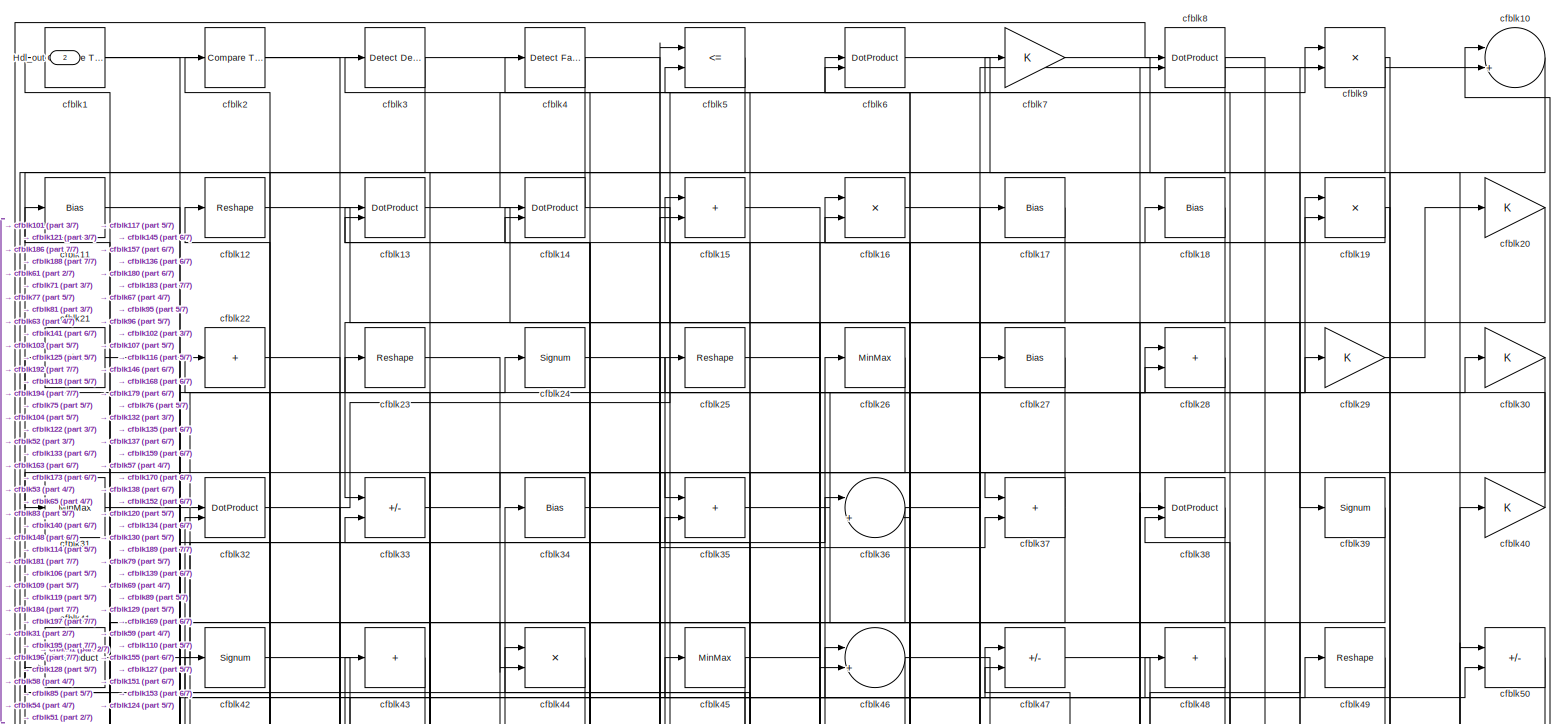
[diagram: root canvas - part 1/7, full width, top band]
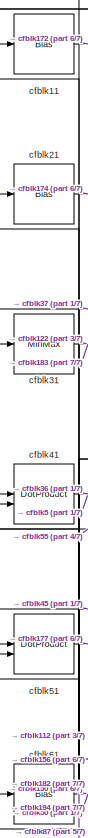
[diagram: root canvas - part 2/7, top left region]
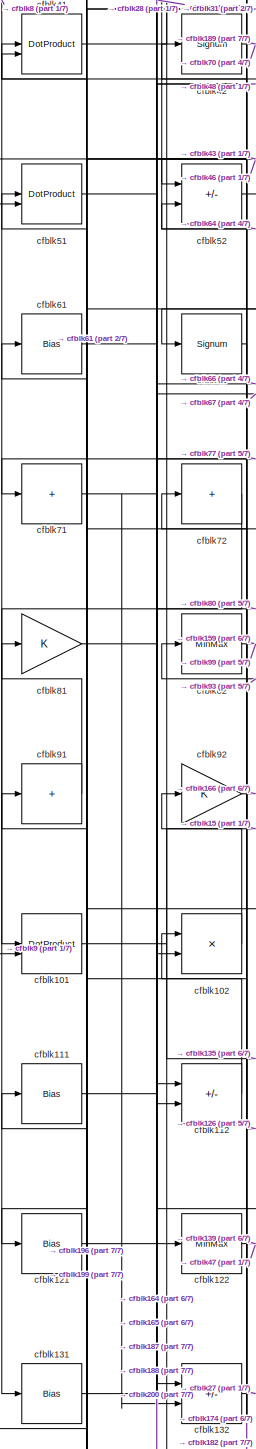
[diagram: root canvas - part 3/7, middle left region]
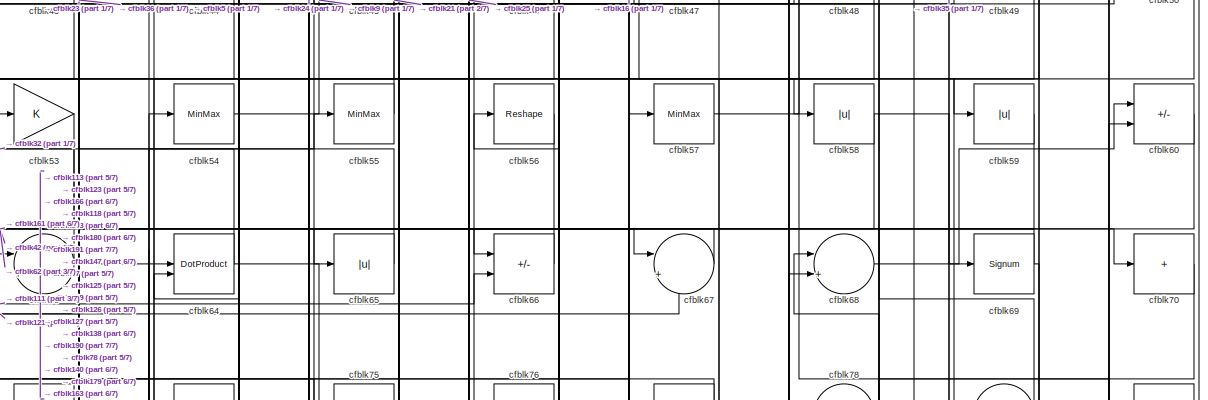
[diagram: root canvas - part 4/7, full width, top band]
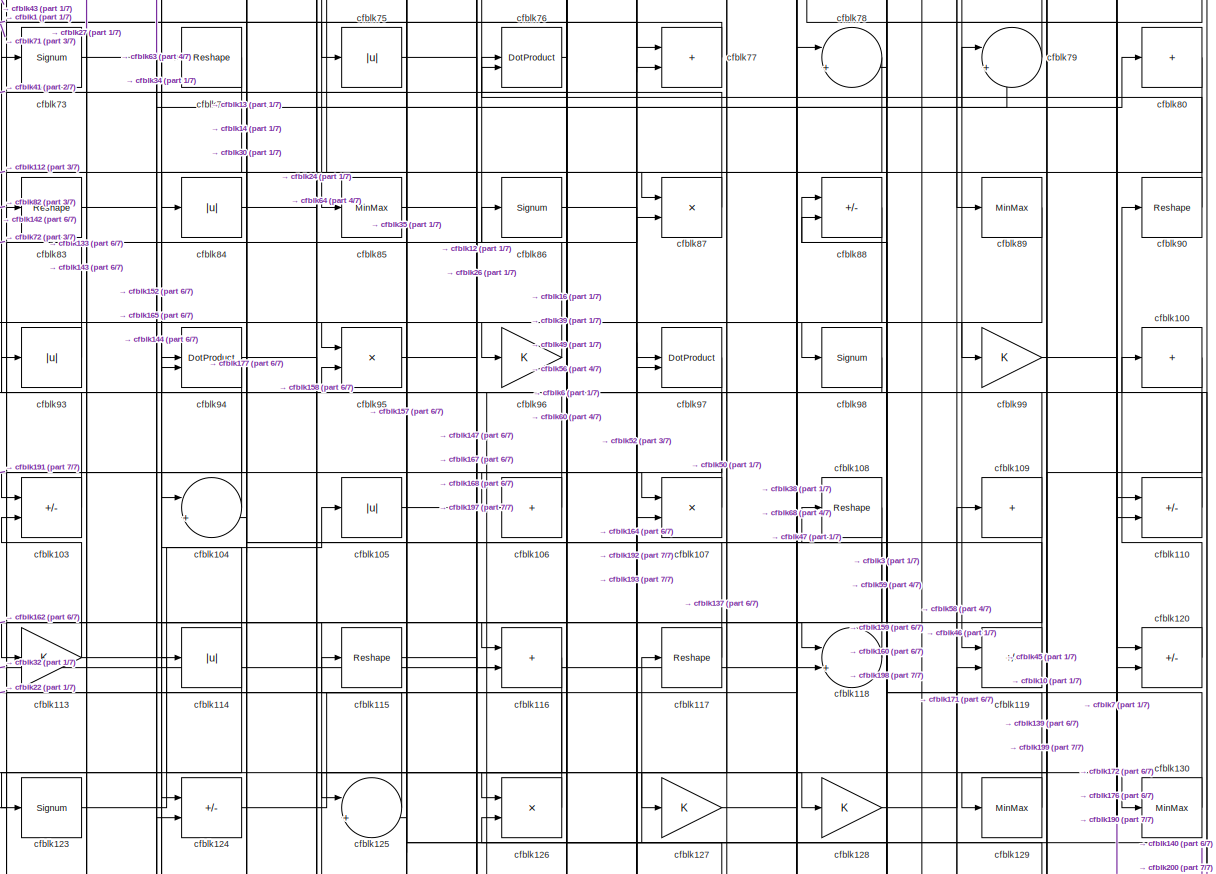
[diagram: root canvas - part 5/7, full width, middle band]
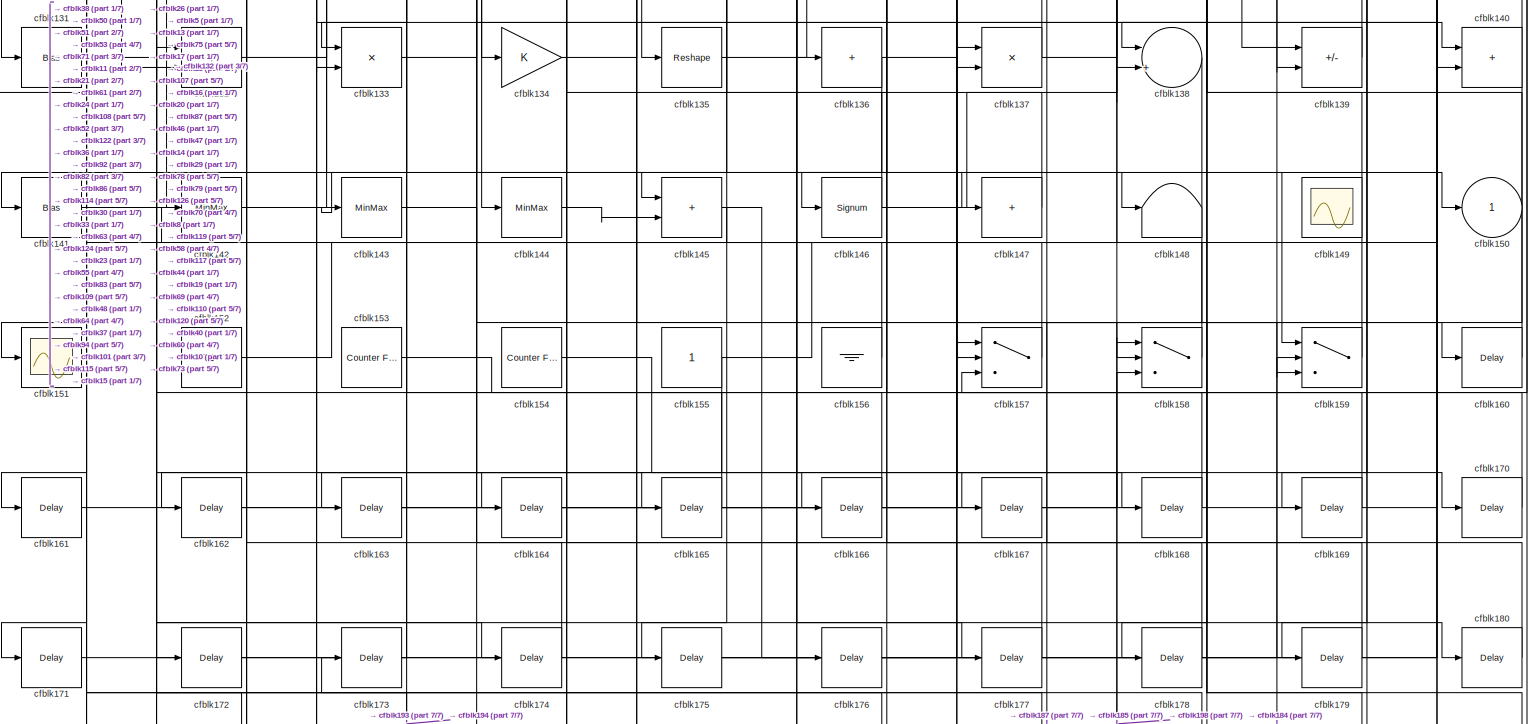
[diagram: root canvas - part 6/7, full width, bottom band]
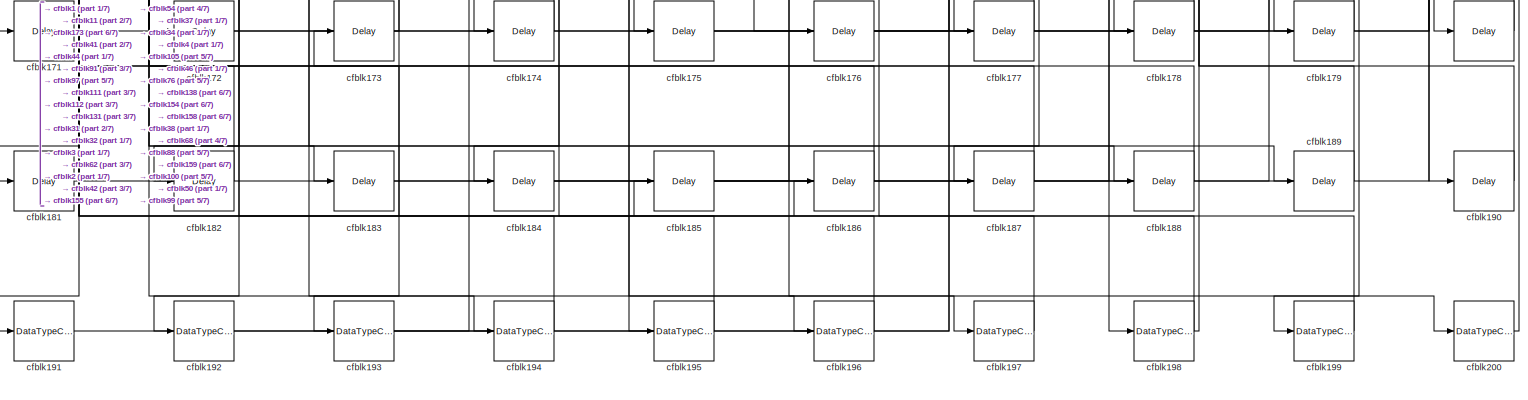
[diagram: root canvas - part 7/7, full width, bottom band]
MODEL slx_822cb5419ef6
KIND model
CONFIG AbsTol = auto
CONFIG EnableMultiTasking = off
CONFIG FixedStep = auto
CONFIG MaxStep = auto
CONFIG MinStep = auto
CONFIG RelTol = 1e-3
CONFIG SampleTimeConstraint = Unconstrained
CONFIG SolverName = VariableStepAuto
CONFIG StartTime = 0.0
CONFIG StopTime = 10.0
BLOCK [Outport] Hdl_out
  OutDataTypeStr = uint8
  Port = 2
BLOCK [Reference] cfblk1  REF=hdlsllib/Logic and Bit
Operations/Compare
To Constant
  SourceBlock = hdlsllib/Logic and Bit\nOperations/Compare\nTo Constant
  SourceType = Compare To Constant
BLOCK [Sum] cfblk10
  Inputs = |++
  OutDataTypeStr = uint8
BLOCK [Sum] cfblk100
  IconShape = rectangular
  Inputs = +
  OutDataTypeStr = uint8
BLOCK [DotProduct] cfblk101
  OutDataTypeStr = uint8
BLOCK [Product] cfblk102
  Inputs = */
  OutDataTypeStr = uint8
  RndMeth = Zero
  SaturateOnIntegerOverflow = on
BLOCK [Sum] cfblk103
  IconShape = rectangular
  Inputs = +-
  OutDataTypeStr = uint8
BLOCK [Sum] cfblk104
  Inputs = |++
  OutDataTypeStr = uint8
BLOCK [Abs] cfblk105
  OutDataTypeStr = uint8
  SaturateOnIntegerOverflow = off
BLOCK [Sum] cfblk106
  IconShape = rectangular
  Inputs = +
  OutDataTypeStr = uint8
BLOCK [Product] cfblk107
  Inputs = */
  OutDataTypeStr = uint8
  RndMeth = Zero
  SaturateOnIntegerOverflow = on
BLOCK [Reshape] cfblk108
BLOCK [Sum] cfblk109
  IconShape = rectangular
  Inputs = +
  OutDataTypeStr = uint8
BLOCK [Bias] cfblk11
  Bias = 0.0
  SaturateOnIntegerOverflow = off
BLOCK [Sum] cfblk110
  IconShape = rectangular
  Inputs = +-
  OutDataTypeStr = uint8
BLOCK [Bias] cfblk111
  Bias = 0.0
  SaturateOnIntegerOverflow = off
BLOCK [Sum] cfblk112
  IconShape = rectangular
  Inputs = +-
  OutDataTypeStr = uint8
BLOCK [Gain] cfblk113
  OutDataTypeStr = uint8
BLOCK [Abs] cfblk114
  OutDataTypeStr = uint8
  SaturateOnIntegerOverflow = off
BLOCK [Reshape] cfblk115
BLOCK [Sum] cfblk116
  IconShape = rectangular
  OutDataTypeStr = uint8
BLOCK [Reshape] cfblk117
BLOCK [Sum] cfblk118
  Inputs = |++
  OutDataTypeStr = uint8
BLOCK [Sum] cfblk119
  IconShape = rectangular
  Inputs = +-
  OutDataTypeStr = uint8
BLOCK [Reshape] cfblk12
BLOCK [Sum] cfblk120
  IconShape = rectangular
  Inputs = +-
  OutDataTypeStr = uint8
BLOCK [Bias] cfblk121
  Bias = 0.0
  SaturateOnIntegerOverflow = off
BLOCK [MinMax] cfblk122
  OutDataTypeStr = uint8
BLOCK [Signum] cfblk123
BLOCK [Sum] cfblk124
  IconShape = rectangular
  Inputs = +-
  OutDataTypeStr = uint8
BLOCK [Sum] cfblk125
  Inputs = |++
  OutDataTypeStr = uint8
BLOCK [Product] cfblk126
  Inputs = */
  OutDataTypeStr = uint8
  RndMeth = Zero
  SaturateOnIntegerOverflow = on
BLOCK [Gain] cfblk127
  OutDataTypeStr = uint8
BLOCK [Gain] cfblk128
  OutDataTypeStr = uint8
BLOCK [MinMax] cfblk129
  OutDataTypeStr = uint8
BLOCK [DotProduct] cfblk13
  OutDataTypeStr = uint8
BLOCK [MinMax] cfblk130
  OutDataTypeStr = uint8
BLOCK [Bias] cfblk131
  Bias = 0.0
  SaturateOnIntegerOverflow = off
BLOCK [Sum] cfblk132
  IconShape = rectangular
  Inputs = +-
  OutDataTypeStr = uint8
BLOCK [Product] cfblk133
  Inputs = */
  OutDataTypeStr = uint8
  RndMeth = Zero
  SaturateOnIntegerOverflow = on
BLOCK [Gain] cfblk134
  OutDataTypeStr = uint8
BLOCK [Reshape] cfblk135
BLOCK [Sum] cfblk136
  IconShape = rectangular
  Inputs = +
  OutDataTypeStr = uint8
BLOCK [Product] cfblk137
  Inputs = */
  OutDataTypeStr = uint8
  RndMeth = Zero
  SaturateOnIntegerOverflow = on
BLOCK [Sum] cfblk138
  Inputs = |++
  OutDataTypeStr = uint8
BLOCK [Sum] cfblk139
  IconShape = rectangular
  Inputs = +-
  OutDataTypeStr = uint8
BLOCK [DotProduct] cfblk14
  OutDataTypeStr = uint8
BLOCK [Sum] cfblk140
  IconShape = rectangular
  OutDataTypeStr = uint8
BLOCK [Bias] cfblk141
  Bias = 0.0
  SaturateOnIntegerOverflow = off
BLOCK [MinMax] cfblk142
  OutDataTypeStr = uint8
BLOCK [MinMax] cfblk143
  OutDataTypeStr = uint8
BLOCK [MinMax] cfblk144
  OutDataTypeStr = uint8
BLOCK [Sum] cfblk145
  IconShape = rectangular
  OutDataTypeStr = uint8
BLOCK [Signum] cfblk146
BLOCK [Sum] cfblk147
  IconShape = rectangular
  Inputs = +
  OutDataTypeStr = uint8
BLOCK [Terminator] cfblk148
BLOCK [Scope] cfblk149
  Floating = on
  NumInputPorts = 1
  ScopeSpecificationString = Simulink.scopes.TimeScopeBlockCfg('CurrentConfiguration', extmgr.ConfigurationSet(extmgr.Configuration('Core','General UI',true,'FigureColor',[0.156862745098039 0.156862745098039 0.156862745098039]),extmgr.Configuration('Core','Source UI',true),extmgr.Configuration('Sources','WiredSimulink',true,'DataLoggingVariableName','ScopeData1','DataLoggingSaveFormat','StructureWithTime','DataLoggingLimitDat...<+2713ch>
BLOCK [Sum] cfblk15
  IconShape = rectangular
  OutDataTypeStr = uint8
BLOCK [Outport] cfblk150
  OutDataTypeStr = uint8
  VectorParamsAs1DForOutWhenUnconnected = off
BLOCK [Scope] cfblk151
  Floating = off
  NumInputPorts = 1
  ScopeSpecificationString = Simulink.scopes.TimeScopeBlockCfg('CurrentConfiguration', extmgr.ConfigurationSet(extmgr.Configuration('Core','General UI',true),extmgr.Configuration('Core','Source UI',true),extmgr.Configuration('Sources','WiredSimulink',true,'DataLoggingVariableName','ScopeData2','DataLoggingSaveFormat','Array','DataLoggingLimitDataPoints',true,'DataLoggingDecimation','1'),extmgr.Configuration('Visuals','Time Do...<+868ch>
BLOCK [Ground] cfblk152
BLOCK [Reference] cfblk153  REF=hdlsllib/Sources/Counter
Free-Running
  SourceBlock = hdlsllib/Sources/Counter\nFree-Running
  SourceType = Counter Free-Running
BLOCK [Reference] cfblk154  REF=hdlsllib/Sources/Counter
Free-Running
  SourceBlock = hdlsllib/Sources/Counter\nFree-Running
  SourceType = Counter Free-Running
BLOCK [Constant] cfblk155
  OutDataTypeStr = uint8
  SampleTime = -1
BLOCK [Ground] cfblk156
BLOCK [Switch] cfblk157
  InputSameDT = off
  OutDataTypeStr = uint8
  SaturateOnIntegerOverflow = off
BLOCK [Switch] cfblk158
  InputSameDT = off
  OutDataTypeStr = uint8
  SaturateOnIntegerOverflow = off
BLOCK [Switch] cfblk159
  InputSameDT = off
  OutDataTypeStr = uint8
  SaturateOnIntegerOverflow = off
BLOCK [Product] cfblk16
  Inputs = */
  OutDataTypeStr = uint8
  RndMeth = Zero
  SaturateOnIntegerOverflow = on
BLOCK [Delay] cfblk160
  InputPortMap = u0
  SampleTime = 1
BLOCK [Delay] cfblk161
  InputPortMap = u0
  SampleTime = 1
BLOCK [Delay] cfblk162
  InputPortMap = u0
  SampleTime = 1
BLOCK [Delay] cfblk163
  InputPortMap = u0
  SampleTime = 1
BLOCK [Delay] cfblk164
  InputPortMap = u0
  SampleTime = 1
BLOCK [Delay] cfblk165
  InputPortMap = u0
  SampleTime = 1
BLOCK [Delay] cfblk166
  InputPortMap = u0
  SampleTime = 1
BLOCK [Delay] cfblk167
  InputPortMap = u0
  SampleTime = 1
BLOCK [Delay] cfblk168
  InputPortMap = u0
  SampleTime = 1
BLOCK [Delay] cfblk169
  InputPortMap = u0
  SampleTime = 1
BLOCK [Bias] cfblk17
  Bias = 0.0
  SaturateOnIntegerOverflow = off
BLOCK [Delay] cfblk170
  InputPortMap = u0
  SampleTime = 1
BLOCK [Delay] cfblk171
  InputPortMap = u0
  SampleTime = 1
BLOCK [Delay] cfblk172
  InputPortMap = u0
  SampleTime = 1
BLOCK [Delay] cfblk173
  InputPortMap = u0
  SampleTime = 1
BLOCK [Delay] cfblk174
  InputPortMap = u0
  SampleTime = 1
BLOCK [Delay] cfblk175
  InputPortMap = u0
  SampleTime = 1
BLOCK [Delay] cfblk176
  InputPortMap = u0
  SampleTime = 1
BLOCK [Delay] cfblk177
  InputPortMap = u0
  SampleTime = 1
BLOCK [Delay] cfblk178
  InputPortMap = u0
  SampleTime = 1
BLOCK [Delay] cfblk179
  InputPortMap = u0
  SampleTime = 1
BLOCK [Bias] cfblk18
  Bias = 0.0
  SaturateOnIntegerOverflow = off
BLOCK [Delay] cfblk180
  InputPortMap = u0
  SampleTime = 1
BLOCK [Delay] cfblk181
  InputPortMap = u0
  SampleTime = 1
BLOCK [Delay] cfblk182
  InputPortMap = u0
  SampleTime = 1
BLOCK [Delay] cfblk183
  InputPortMap = u0
  SampleTime = 1
BLOCK [Delay] cfblk184
  InputPortMap = u0
  SampleTime = 1
BLOCK [Delay] cfblk185
  InputPortMap = u0
  SampleTime = 1
BLOCK [Delay] cfblk186
  InputPortMap = u0
  SampleTime = 1
BLOCK [Delay] cfblk187
  InputPortMap = u0
  SampleTime = 1
BLOCK [Delay] cfblk188
  InputPortMap = u0
  SampleTime = 1
BLOCK [Delay] cfblk189
  InputPortMap = u0
  SampleTime = 1
BLOCK [Product] cfblk19
  Inputs = */
  OutDataTypeStr = uint8
  RndMeth = Zero
  SaturateOnIntegerOverflow = on
BLOCK [Delay] cfblk190
  InputPortMap = u0
  SampleTime = 1
BLOCK [DataTypeConversion] cfblk191
  OutDataTypeStr = uint8
  RndMeth = Floor
  SaturateOnIntegerOverflow = off
BLOCK [DataTypeConversion] cfblk192
  OutDataTypeStr = uint8
  RndMeth = Floor
  SaturateOnIntegerOverflow = off
BLOCK [DataTypeConversion] cfblk193
  OutDataTypeStr = uint8
  RndMeth = Floor
  SaturateOnIntegerOverflow = off
BLOCK [DataTypeConversion] cfblk194
  OutDataTypeStr = uint8
  RndMeth = Floor
  SaturateOnIntegerOverflow = off
BLOCK [DataTypeConversion] cfblk195
  OutDataTypeStr = uint8
  RndMeth = Floor
  SaturateOnIntegerOverflow = off
BLOCK [DataTypeConversion] cfblk196
  OutDataTypeStr = uint8
  RndMeth = Floor
  SaturateOnIntegerOverflow = off
BLOCK [DataTypeConversion] cfblk197
  OutDataTypeStr = uint8
  RndMeth = Floor
  SaturateOnIntegerOverflow = off
BLOCK [DataTypeConversion] cfblk198
  OutDataTypeStr = uint8
  RndMeth = Floor
  SaturateOnIntegerOverflow = off
BLOCK [DataTypeConversion] cfblk199
  OutDataTypeStr = uint8
  RndMeth = Floor
  SaturateOnIntegerOverflow = off
BLOCK [Reference] cfblk2  REF=hdlsllib/Logic and Bit
Operations/Compare
To Constant
  SourceBlock = hdlsllib/Logic and Bit\nOperations/Compare\nTo Constant
  SourceType = Compare To Constant
BLOCK [Gain] cfblk20
  OutDataTypeStr = uint8
BLOCK [DataTypeConversion] cfblk200
  OutDataTypeStr = uint8
  RndMeth = Floor
  SaturateOnIntegerOverflow = off
BLOCK [Bias] cfblk21
  Bias = 0.0
  SaturateOnIntegerOverflow = off
BLOCK [Sum] cfblk22
  IconShape = rectangular
  Inputs = +
  OutDataTypeStr = uint8
BLOCK [Reshape] cfblk23
BLOCK [Signum] cfblk24
BLOCK [Reshape] cfblk25
BLOCK [MinMax] cfblk26
  OutDataTypeStr = uint8
BLOCK [Bias] cfblk27
  Bias = 0.0
  SaturateOnIntegerOverflow = off
BLOCK [Sum] cfblk28
  IconShape = rectangular
  OutDataTypeStr = uint8
BLOCK [Gain] cfblk29
  OutDataTypeStr = uint8
BLOCK [Reference] cfblk3  REF=simulink/Logic and Bit
Operations/Detect
Decrease
  LibrarySourceBlock = hdlsllib/Logic and Bit\nOperations/Detect\nDecrease
  SourceBlock = simulink/Logic and Bit\nOperations/Detect\nDecrease
  SourceType = Detect Decrease
BLOCK [Gain] cfblk30
  OutDataTypeStr = uint8
BLOCK [MinMax] cfblk31
  OutDataTypeStr = uint8
BLOCK [DotProduct] cfblk32
  OutDataTypeStr = uint8
BLOCK [Sum] cfblk33
  IconShape = rectangular
  Inputs = +-
  OutDataTypeStr = uint8
BLOCK [Bias] cfblk34
  Bias = 0.0
  SaturateOnIntegerOverflow = off
BLOCK [Sum] cfblk35
  IconShape = rectangular
  OutDataTypeStr = uint8
BLOCK [Sum] cfblk36
  Inputs = |++
  OutDataTypeStr = uint8
BLOCK [Sum] cfblk37
  IconShape = rectangular
  OutDataTypeStr = uint8
BLOCK [DotProduct] cfblk38
  OutDataTypeStr = uint8
BLOCK [Signum] cfblk39
BLOCK [Reference] cfblk4  REF=hdlsllib/Logic and Bit
Operations/Detect Fall
Nonpositive
  SourceBlock = hdlsllib/Logic and Bit\nOperations/Detect Fall\nNonpositive
  SourceType = Detect Fall Nonpositive
BLOCK [Gain] cfblk40
  OutDataTypeStr = uint8
BLOCK [DotProduct] cfblk41
  OutDataTypeStr = uint8
BLOCK [Signum] cfblk42
BLOCK [Sum] cfblk43
  IconShape = rectangular
  Inputs = +
  OutDataTypeStr = uint8
BLOCK [Product] cfblk44
  Inputs = */
  OutDataTypeStr = uint8
  RndMeth = Zero
  SaturateOnIntegerOverflow = on
BLOCK [MinMax] cfblk45
  OutDataTypeStr = uint8
BLOCK [Sum] cfblk46
  Inputs = |++
  OutDataTypeStr = uint8
BLOCK [Sum] cfblk47
  IconShape = rectangular
  Inputs = +-
  OutDataTypeStr = uint8
BLOCK [Sum] cfblk48
  IconShape = rectangular
  Inputs = +
  OutDataTypeStr = uint8
BLOCK [Reshape] cfblk49
BLOCK [RelationalOperator] cfblk5
  InputSameDT = off
  Operator = <=
  OutDataTypeStr = boolean
BLOCK [Sum] cfblk50
  IconShape = rectangular
  Inputs = +-
  OutDataTypeStr = uint8
BLOCK [DotProduct] cfblk51
  OutDataTypeStr = uint8
BLOCK [Sum] cfblk52
  IconShape = rectangular
  Inputs = +-
  OutDataTypeStr = uint8
BLOCK [Gain] cfblk53
  OutDataTypeStr = uint8
BLOCK [MinMax] cfblk54
  OutDataTypeStr = uint8
BLOCK [MinMax] cfblk55
  OutDataTypeStr = uint8
BLOCK [Reshape] cfblk56
BLOCK [MinMax] cfblk57
  OutDataTypeStr = uint8
BLOCK [Abs] cfblk58
  OutDataTypeStr = uint8
  SaturateOnIntegerOverflow = off
BLOCK [Abs] cfblk59
  OutDataTypeStr = uint8
  SaturateOnIntegerOverflow = off
BLOCK [DotProduct] cfblk6
  OutDataTypeStr = uint8
BLOCK [Sum] cfblk60
  IconShape = rectangular
  Inputs = +-
  OutDataTypeStr = uint8
BLOCK [Bias] cfblk61
  Bias = 0.0
  SaturateOnIntegerOverflow = off
BLOCK [Signum] cfblk62
BLOCK [Sum] cfblk63
  Inputs = |++
  OutDataTypeStr = uint8
BLOCK [DotProduct] cfblk64
  OutDataTypeStr = uint8
BLOCK [Abs] cfblk65
  OutDataTypeStr = uint8
  SaturateOnIntegerOverflow = off
BLOCK [Sum] cfblk66
  IconShape = rectangular
  Inputs = +-
  OutDataTypeStr = uint8
BLOCK [Sum] cfblk67
  Inputs = |++
  OutDataTypeStr = uint8
BLOCK [Sum] cfblk68
  Inputs = |++
  OutDataTypeStr = uint8
BLOCK [Signum] cfblk69
BLOCK [Gain] cfblk7
  OutDataTypeStr = uint8
BLOCK [Sum] cfblk70
  IconShape = rectangular
  Inputs = +
  OutDataTypeStr = uint8
BLOCK [Sum] cfblk71
  IconShape = rectangular
  Inputs = +
  OutDataTypeStr = uint8
BLOCK [Sum] cfblk72
  IconShape = rectangular
  Inputs = +
  OutDataTypeStr = uint8
BLOCK [Signum] cfblk73
BLOCK [Reshape] cfblk74
BLOCK [Abs] cfblk75
  OutDataTypeStr = uint8
  SaturateOnIntegerOverflow = off
BLOCK [DotProduct] cfblk76
  OutDataTypeStr = uint8
BLOCK [Sum] cfblk77
  IconShape = rectangular
  OutDataTypeStr = uint8
BLOCK [Sum] cfblk78
  Inputs = |++
  OutDataTypeStr = uint8
BLOCK [Sum] cfblk79
  Inputs = |++
  OutDataTypeStr = uint8
BLOCK [DotProduct] cfblk8
  OutDataTypeStr = uint8
BLOCK [Sum] cfblk80
  IconShape = rectangular
  Inputs = +
  OutDataTypeStr = uint8
BLOCK [Gain] cfblk81
  OutDataTypeStr = uint8
BLOCK [MinMax] cfblk82
  OutDataTypeStr = uint8
BLOCK [Reshape] cfblk83
BLOCK [Abs] cfblk84
  OutDataTypeStr = uint8
  SaturateOnIntegerOverflow = off
BLOCK [MinMax] cfblk85
  OutDataTypeStr = uint8
BLOCK [Signum] cfblk86
BLOCK [Product] cfblk87
  Inputs = */
  OutDataTypeStr = uint8
  RndMeth = Zero
  SaturateOnIntegerOverflow = on
BLOCK [Sum] cfblk88
  IconShape = rectangular
  Inputs = +-
  OutDataTypeStr = uint8
BLOCK [MinMax] cfblk89
  OutDataTypeStr = uint8
BLOCK [Product] cfblk9
  Inputs = */
  OutDataTypeStr = uint8
  RndMeth = Zero
  SaturateOnIntegerOverflow = on
BLOCK [Reshape] cfblk90
BLOCK [Sum] cfblk91
  IconShape = rectangular
  Inputs = +
  OutDataTypeStr = uint8
BLOCK [Gain] cfblk92
  OutDataTypeStr = uint8
BLOCK [Abs] cfblk93
  OutDataTypeStr = uint8
  SaturateOnIntegerOverflow = off
BLOCK [DotProduct] cfblk94
  OutDataTypeStr = uint8
BLOCK [Product] cfblk95
  Inputs = */
  OutDataTypeStr = uint8
  RndMeth = Zero
  SaturateOnIntegerOverflow = on
BLOCK [Gain] cfblk96
  OutDataTypeStr = uint8
BLOCK [DotProduct] cfblk97
  OutDataTypeStr = uint8
BLOCK [Signum] cfblk98
BLOCK [Gain] cfblk99
  OutDataTypeStr = uint8
LINE cfblk100:1 -> cfblk199:1
NET cfblk101:1 -> cfblk135:1, cfblk15:2
LINE cfblk102:1 -> cfblk92:1
LINE cfblk103:1 -> cfblk12:1
LINE cfblk104:1 -> cfblk43:1
LINE cfblk105:1 -> cfblk197:1
LINE cfblk106:1 -> cfblk14:1
LINE cfblk107:1 -> cfblk16:1
LINE cfblk108:1 -> cfblk162:1
NET cfblk109:1 -> cfblk144:1, cfblk14:2
LINE cfblk10:1 -> cfblk129:1
LINE cfblk110:1 -> cfblk74:1
NET cfblk111:1 -> cfblk200:1, cfblk66:2
LINE cfblk112:1 -> cfblk61:1
NET cfblk113:1 -> cfblk103:2, cfblk130:1
NET cfblk114:1 -> cfblk133:1, cfblk34:1
LINE cfblk115:1 -> cfblk147:1
LINE cfblk116:1 -> cfblk125:1
LINE cfblk117:1 -> cfblk35:2
NET cfblk118:1 -> cfblk6:2, cfblk93:1
NET cfblk119:1 -> cfblk13:1, cfblk56:1, cfblk88:1
LINE cfblk11:1 -> cfblk172:1
LINE cfblk120:1 -> cfblk90:1
NET cfblk121:1 -> cfblk67:2, cfblk8:1
NET cfblk122:1 -> cfblk139:2, cfblk47:1
LINE cfblk123:1 -> cfblk105:1
LINE cfblk124:1 -> cfblk38:1
LINE cfblk125:1 -> cfblk22:1
LINE cfblk126:1 -> cfblk82:1
LINE cfblk127:1 -> cfblk68:2
LINE cfblk128:1 -> cfblk109:1
LINE cfblk129:1 -> cfblk108:1
NET cfblk12:1 -> cfblk116:2, cfblk89:1
LINE cfblk130:1 -> cfblk3:1
LINE cfblk131:1 -> cfblk188:1
NET cfblk132:1 -> cfblk102:1, cfblk27:1
LINE cfblk133:1 -> cfblk55:1
NET cfblk134:1 -> cfblk30:1, cfblk37:2
LINE cfblk135:1 -> cfblk17:1
NET cfblk136:1 -> cfblk170:1, cfblk171:1
NET cfblk137:1 -> cfblk46:1, cfblk79:1
LINE cfblk138:1 -> cfblk187:1
NET cfblk139:1 -> cfblk117:1, cfblk44:1
NET cfblk13:1 -> cfblk136:1, cfblk7:1
NET cfblk140:1 -> cfblk178:1, cfblk73:1
LINE cfblk141:1 -> cfblk24:1
LINE cfblk142:1 -> cfblk86:1
LINE cfblk143:1 -> cfblk160:1
LINE cfblk144:1 -> cfblk145:2
NET cfblk145:1 -> cfblk175:1, cfblk176:1
NET cfblk146:1 -> cfblk29:1, cfblk5:2
LINE cfblk147:1 -> cfblk64:2
NET cfblk14:1 -> Hdl_out:1, cfblk138:2
NET cfblk152:1 -> cfblk124:2, cfblk8:2
LINE cfblk153:1 -> cfblk10:1
LINE cfblk154:1 -> cfblk198:1
NET cfblk155:1 -> cfblk193:1, cfblk40:1
LINE cfblk156:1 -> cfblk51:1
NET cfblk157:1 -> cfblk115:1, cfblk15:1
LINE cfblk158:1 -> cfblk142:1
LINE cfblk159:1 -> cfblk94:1
LINE cfblk15:1 -> cfblk180:1
LINE cfblk160:1 -> cfblk126:2
LINE cfblk161:1 -> cfblk158:1
LINE cfblk162:1 -> cfblk107:2
LINE cfblk163:1 -> cfblk60:2
LINE cfblk164:1 -> cfblk87:2
LINE cfblk165:1 -> cfblk132:1
LINE cfblk166:1 -> cfblk63:1
LINE cfblk167:1 -> cfblk78:1
LINE cfblk168:1 -> cfblk36:2
LINE cfblk169:1 -> cfblk157:1
NET cfblk16:1 -> cfblk159:3, cfblk57:1
LINE cfblk170:1 -> cfblk47:2
LINE cfblk171:1 -> cfblk119:2
LINE cfblk172:1 -> cfblk110:1
LINE cfblk173:1 -> cfblk33:2
LINE cfblk174:1 -> cfblk52:2
LINE cfblk175:1 -> cfblk137:1
LINE cfblk176:1 -> cfblk120:2
LINE cfblk177:1 -> cfblk94:2
LINE cfblk178:1 -> cfblk157:3
LINE cfblk179:1 -> cfblk16:2
LINE cfblk17:1 -> cfblk33:1
LINE cfblk180:1 -> cfblk64:1
LINE cfblk181:1 -> cfblk50:1
LINE cfblk182:1 -> cfblk41:2
LINE cfblk183:1 -> cfblk46:2
LINE cfblk184:1 -> cfblk159:2
LINE cfblk185:1 -> cfblk158:3
LINE cfblk186:1 -> cfblk1:1
LINE cfblk187:1 -> cfblk112:1
LINE cfblk188:1 -> cfblk32:1
LINE cfblk189:1 -> cfblk38:2
LINE cfblk18:1 -> cfblk146:1
LINE cfblk190:1 -> cfblk68:1
LINE cfblk191:1 -> cfblk54:1
LINE cfblk192:1 -> cfblk97:1
LINE cfblk193:1 -> cfblk97:2
NET cfblk194:1 -> cfblk11:1, cfblk173:1
LINE cfblk195:1 -> cfblk2:1
NET cfblk196:1 -> cfblk111:1, cfblk186:1
LINE cfblk197:1 -> cfblk4:1
NET cfblk198:1 -> cfblk76:2, cfblk88:2
NET cfblk199:1 -> cfblk185:1, cfblk91:1
NET cfblk19:1 -> cfblk13:2, cfblk169:1
NET cfblk1:1 -> cfblk124:1, cfblk77:2
LINE cfblk200:1 -> cfblk100:1
LINE cfblk20:1 -> cfblk137:2
LINE cfblk21:1 -> cfblk174:1
LINE cfblk22:1 -> cfblk75:1
NET cfblk23:1 -> cfblk140:2, cfblk148:1
NET cfblk24:1 -> cfblk128:1, cfblk58:1, cfblk85:1
NET cfblk25:1 -> cfblk28:2, cfblk67:1
LINE cfblk26:1 -> cfblk145:1
LINE cfblk27:1 -> cfblk83:1
LINE cfblk28:1 -> cfblk37:1
LINE cfblk29:1 -> cfblk20:1
LINE cfblk2:1 -> cfblk194:1
NET cfblk30:1 -> cfblk104:2, cfblk163:1
NET cfblk31:1 -> cfblk122:1, cfblk183:1
NET cfblk32:1 -> cfblk118:2, cfblk18:1
LINE cfblk33:1 -> cfblk35:1
LINE cfblk34:1 -> cfblk195:1
NET cfblk35:1 -> cfblk19:1, cfblk69:1
NET cfblk36:1 -> cfblk10:2, cfblk133:2, cfblk44:2, cfblk63:2
NET cfblk37:1 -> cfblk184:1, cfblk31:1
LINE cfblk38:1 -> cfblk141:1
NET cfblk39:1 -> cfblk116:1, cfblk121:1
LINE cfblk3:1 -> cfblk192:1
LINE cfblk40:1 -> cfblk25:1
NET cfblk41:1 -> cfblk36:1, cfblk5:1
NET cfblk42:1 -> cfblk189:1, cfblk70:1
LINE cfblk43:1 -> cfblk52:1
LINE cfblk44:1 -> cfblk181:1
NET cfblk45:1 -> cfblk19:2, cfblk51:2
NET cfblk46:1 -> cfblk102:2, cfblk119:1
LINE cfblk47:1 -> cfblk120:1
LINE cfblk48:1 -> cfblk134:1
LINE cfblk49:1 -> cfblk96:1
LINE cfblk4:1 -> cfblk196:1
NET cfblk50:1 -> cfblk127:1, cfblk151:1
LINE cfblk51:1 -> cfblk177:1
LINE cfblk52:1 -> cfblk77:1
LINE cfblk53:1 -> cfblk161:1
LINE cfblk54:1 -> cfblk9:1
LINE cfblk55:1 -> cfblk21:1
LINE cfblk56:1 -> cfblk123:1
LINE cfblk57:1 -> cfblk9:2
NET cfblk58:1 -> cfblk113:1, cfblk125:2, cfblk140:1
LINE cfblk59:1 -> cfblk78:2
LINE cfblk5:1 -> cfblk53:1
LINE cfblk60:1 -> cfblk126:1
NET cfblk61:1 -> cfblk150:1, cfblk50:2
LINE cfblk62:1 -> cfblk182:1
NET cfblk63:1 -> cfblk118:1, cfblk32:2
NET cfblk64:1 -> cfblk42:1, cfblk87:1
LINE cfblk65:1 -> cfblk23:1
LINE cfblk66:1 -> cfblk65:1
LINE cfblk67:1 -> cfblk62:1
LINE cfblk68:1 -> cfblk60:1
NET cfblk69:1 -> cfblk179:1, cfblk66:1
LINE cfblk6:1 -> cfblk39:1
LINE cfblk70:1 -> cfblk138:1
NET cfblk71:1 -> cfblk132:2, cfblk164:1, cfblk28:1
LINE cfblk72:1 -> cfblk131:1
NET cfblk73:1 -> cfblk103:1, cfblk79:2, cfblk98:1
LINE cfblk74:1 -> cfblk114:1
NET cfblk75:1 -> cfblk167:1, cfblk168:1
LINE cfblk76:1 -> cfblk6:1
LINE cfblk77:1 -> cfblk71:1
LINE cfblk78:1 -> cfblk84:1
LINE cfblk79:1 -> cfblk45:1
LINE cfblk7:1 -> cfblk110:2
NET cfblk80:1 -> cfblk104:1, cfblk112:2
LINE cfblk81:1 -> cfblk48:1
NET cfblk82:1 -> cfblk159:1, cfblk99:1
LINE cfblk83:1 -> cfblk165:1
LINE cfblk84:1 -> cfblk80:1
LINE cfblk85:1 -> cfblk107:1
LINE cfblk86:1 -> cfblk157:2
LINE cfblk87:1 -> cfblk41:1
LINE cfblk88:1 -> cfblk106:1
LINE cfblk89:1 -> cfblk95:1
NET cfblk8:1 -> cfblk101:1, cfblk139:1
LINE cfblk90:1 -> cfblk76:1
LINE cfblk91:1 -> cfblk81:1
LINE cfblk92:1 -> cfblk166:1
LINE cfblk93:1 -> cfblk72:1
NET cfblk94:1 -> cfblk143:1, cfblk158:2
LINE cfblk95:1 -> cfblk49:1
LINE cfblk96:1 -> cfblk26:1
LINE cfblk97:1 -> cfblk191:1
LINE cfblk98:1 -> cfblk95:2
LINE cfblk99:1 -> cfblk190:1
NET cfblk9:1 -> cfblk101:2, cfblk59:1
note: NET lines group one-source signal fan-out (src -> all destinations, sorted); 1:1 wires keep LINE
